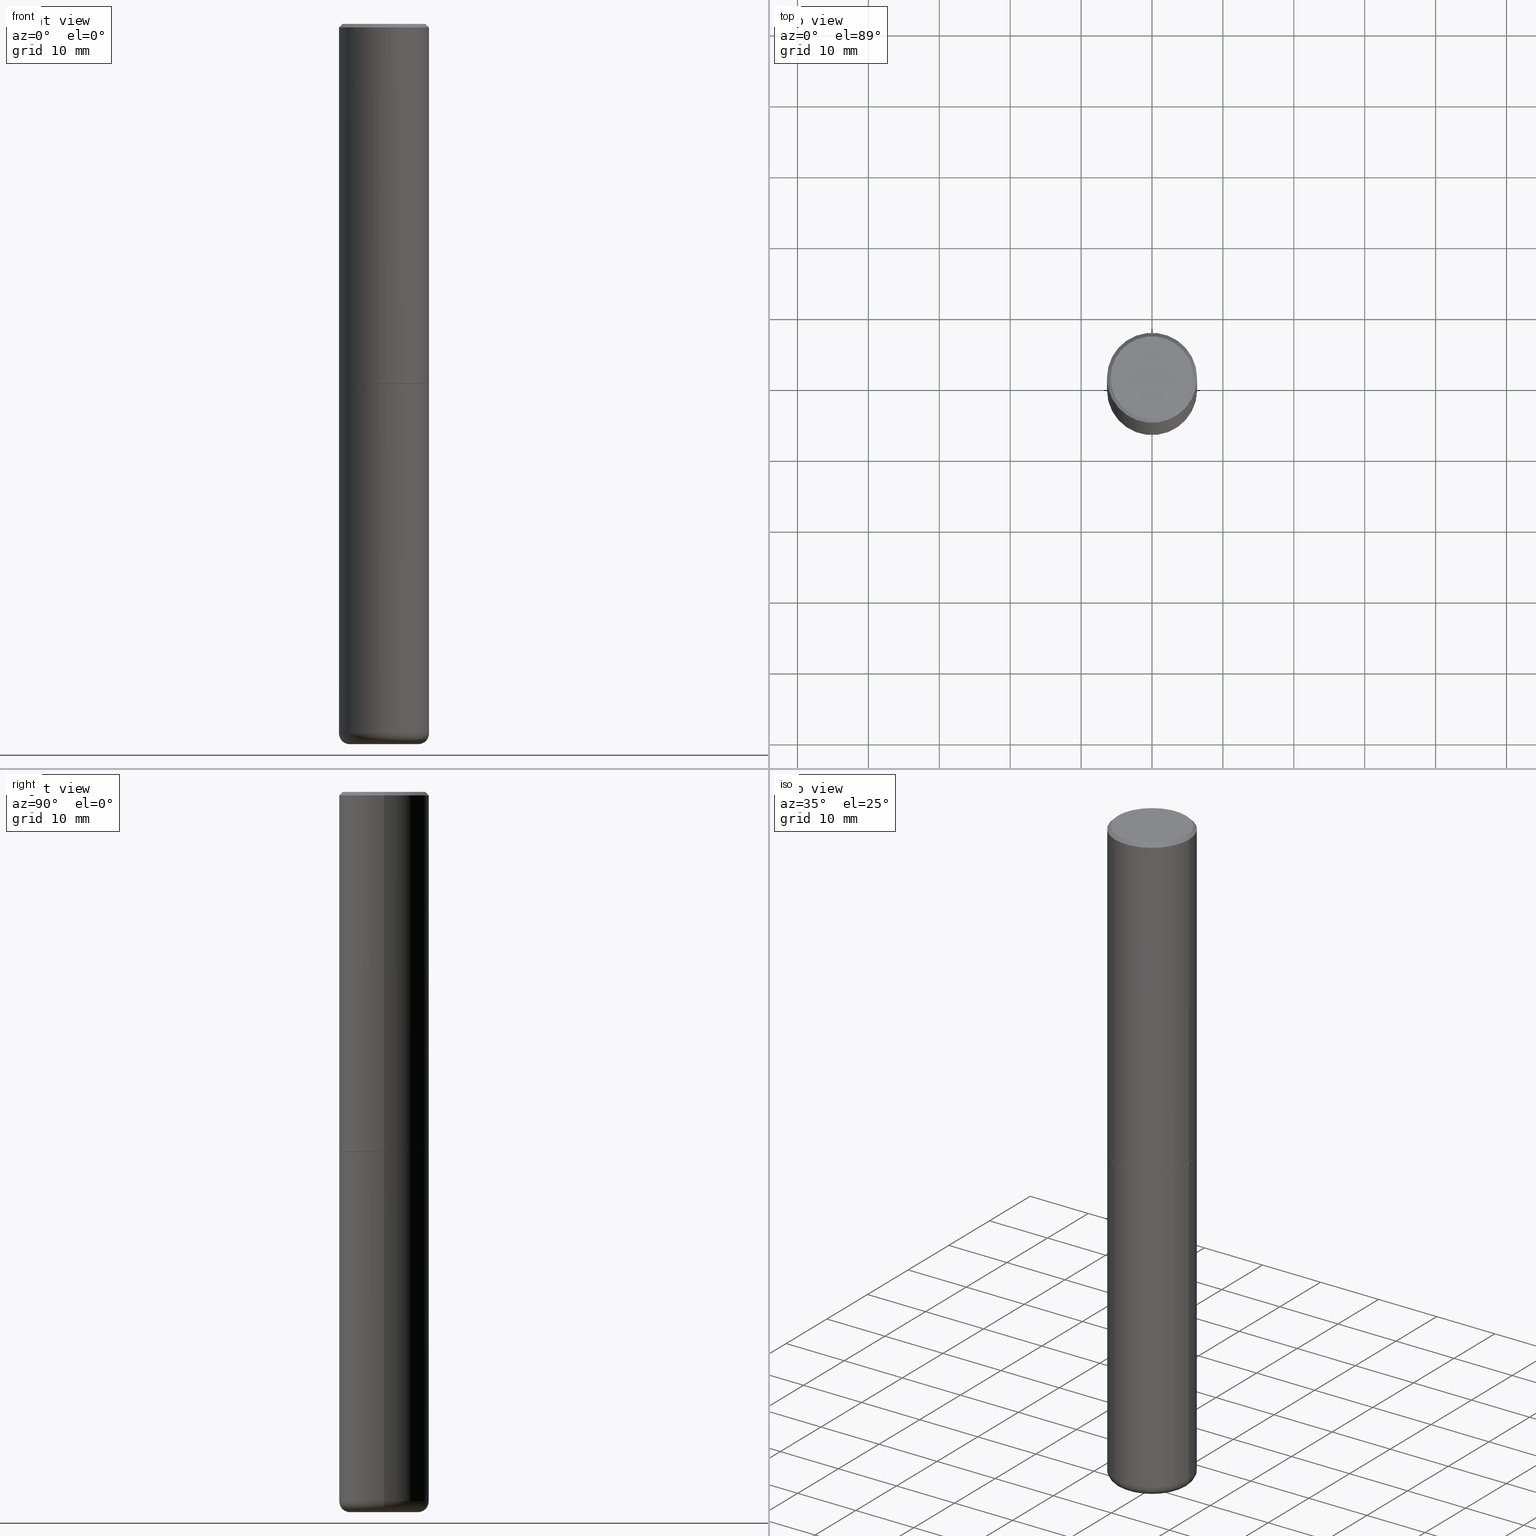
[diagram: canonical four-view strip — front | top / right | iso, engineering-drawing reading convention]
A machine part, canonical four-view strip (front | top / right | iso — engineering-drawing reading convention). The complete STEP part file that produces these views, byte-faithful:
ISO-10303-21;
HEADER;
FILE_DESCRIPTION (( 'STEP AP203' ),
    '1' );
FILE_NAME ('35619.STEP',
    '2022-11-02T20:28:57',
    ( '' ),
    ( '' ),
    'SwSTEP 2.0',
    'SolidWorks 2022',
    '' );
FILE_SCHEMA (( 'CONFIG_CONTROL_DESIGN' ));
ENDSEC;

DATA;
#1 = AXIS2_PLACEMENT_3D ( 'NONE', #47, #161, #270 ) ;
#2 = CARTESIAN_POINT ( 'NONE',  ( 0.1894764078700981458, -1.526582787219033166E-14, -4.000000000000000000 ) ) ;
#3 = EDGE_CURVE ( 'NONE', #419, #341, #153, .T. ) ;
#4 = PERSON_AND_ORGANIZATION_ROLE ( 'creator' ) ;
#5 = DIRECTION ( 'NONE',  ( -1.000000000000000000, 6.982962677686267499E-15, 0.000000000000000000 ) ) ;
#6 = DIRECTION ( 'NONE',  ( 1.000000000000000000, -6.982962677686267499E-15, 0.000000000000000000 ) ) ;
#7 = CARTESIAN_POINT ( 'NONE',  ( -0.2500000000000000000, 1.776356839400250465E-15, -1.229733772563726445E-29 ) ) ;
#8 = AXIS2_PLACEMENT_3D ( 'NONE', #186, #295, #13 ) ;
#9 = VECTOR ( 'NONE', #146, 39.37007874015748854 ) ;
#10 = CARTESIAN_POINT ( 'NONE',  ( -0.1628114078700981238, -1.282820689626927800E-14, -3.999767298070359356 ) ) ;
#11 = DIRECTION ( 'NONE',  ( -2.445468806185136597E-29, 3.491481338843145583E-15, 1.000000000000000000 ) ) ;
#12 = ORIENTED_EDGE ( 'NONE', *, *, #354, .F. ) ;
#13 = DIRECTION ( 'NONE',  ( -1.000000000000000000, 6.982962677686265922E-15, -4.876176775795935793E-29 ) ) ;
#14 = CARTESIAN_POINT ( 'NONE',  ( 0.1628114078700981238, -1.508208021863490291E-14, -3.999767298070359356 ) ) ;
#15 = PRODUCT ( '35619', '35619', '', ( #336 ) ) ;
#16 = CARTESIAN_POINT ( 'NONE',  ( 9.781306159430471629E-29, -1.396511288092772933E-14, -3.999767298070359356 ) ) ;
#17 = AXIS2_PLACEMENT_3D ( 'NONE', #335, #379, #5 ) ;
#18 = VERTEX_POINT ( 'NONE', #68 ) ;
#19 = DIRECTION ( 'NONE',  ( -2.445468806185136877E-29, 3.491481338843145188E-15, 1.000000000000000000 ) ) ;
#20 = DIRECTION ( 'NONE',  ( 1.000000000000000000, -6.982962677686267499E-15, 0.000000000000000000 ) ) ;
#21 = CARTESIAN_POINT ( 'NONE',  ( 4.888492143564087591E-29, -6.979471196347447369E-15, -1.998999999999999888 ) ) ;
#22 = CIRCLE ( 'NONE', #301, 0.05999999999999994227 ) ;
#23 = AXIS2_PLACEMENT_3D ( 'NONE', #211, #376, #196 ) ;
#24 = CC_DESIGN_PERSON_AND_ORGANIZATION_ASSIGNMENT ( #155, #453, ( #473 ) ) ;
#25 = ORIENTED_EDGE ( 'NONE', *, *, #236, .T. ) ;
#26 = APPROVAL ( #256, 'UNSPECIFIED' ) ;
#27 = DIRECTION ( 'NONE',  ( -2.445468806185136597E-29, 3.491481338843145583E-15, 1.000000000000000000 ) ) ;
#28 = COORDINATED_UNIVERSAL_TIME_OFFSET ( 5, 0, .BEHIND. ) ;
#29 = DATE_TIME_ROLE ( 'creation_date' ) ;
#30 = EDGE_LOOP ( 'NONE', ( #215, #443, #134, #410 ) ) ;
#31 = EDGE_CURVE ( 'NONE', #440, #185, #229, .T. ) ;
#32 = CIRCLE ( 'NONE', #56, 0.2299999999999992328 ) ;
#33 = DIRECTION ( 'NONE',  ( 1.000000000000000000, -6.982962677686267499E-15, 0.000000000000000000 ) ) ;
#34 = DIRECTION ( 'NONE',  ( 1.000000000000000000, 0.000000000000000000, 0.000000000000000000 ) ) ;
#35 = ORIENTED_EDGE ( 'NONE', *, *, #411, .T. ) ;
#36 = ORIENTED_EDGE ( 'NONE', *, *, #122, .F. ) ;
#37 = PLANE ( 'NONE',  #8 ) ;
#38 = ORIENTED_EDGE ( 'NONE', *, *, #236, .F. ) ;
#39 = CARTESIAN_POINT ( 'NONE',  ( 4.890937612370273194E-29, -6.982962677686291165E-15, -2.000000000000000000 ) ) ;
#40 = LINE ( 'NONE', #370, #129 ) ;
#41 = VERTEX_POINT ( 'NONE', #374 ) ;
#42 = AXIS2_PLACEMENT_3D ( 'NONE', #394, #11, #466 ) ;
#43 = LOCAL_TIME ( 16, 28, 57.00000000000000000, #416 ) ;
#44 = CIRCLE ( 'NONE', #454, 0.2489999999999999714 ) ;
#45 = FACE_OUTER_BOUND ( 'NONE', #346, .T. ) ;
#46 = DIMENSIONAL_EXPONENTS ( 1.000000000000000000, 0.000000000000000000, 0.000000000000000000, 0.000000000000000000, 0.000000000000000000, 0.000000000000000000, 0.000000000000000000 ) ;
#47 = CARTESIAN_POINT ( 'NONE',  ( 9.781306159430471629E-29, -1.396511288092772933E-14, -3.999767298070359356 ) ) ;
#48 = LINE ( 'NONE', #271, #477 ) ;
#49 = AXIS2_PLACEMENT_3D ( 'NONE', #100, #237, #96 ) ;
#50 = SECURITY_CLASSIFICATION_LEVEL ( 'unclassified' ) ;
#51 = DIRECTION ( 'NONE',  ( 1.000000000000000000, -6.982962677686265922E-15, 4.876176775795935793E-29 ) ) ;
#52 = CARTESIAN_POINT ( 'NONE',  ( 4.890937612370299433E-31, -6.982962677686328587E-17, -0.02000000000000010797 ) ) ;
#53 = DIRECTION ( 'NONE',  ( 1.000000000000000000, -6.982962677686266711E-15, 4.875813741439116029E-29 ) ) ;
#54 = FACE_OUTER_BOUND ( 'NONE', #366, .T. ) ;
#55 = LINE ( 'NONE', #426, #91 ) ;
#56 = AXIS2_PLACEMENT_3D ( 'NONE', #361, #403, #409 ) ;
#57 = DIRECTION ( 'NONE',  ( 2.445468806185136597E-29, -3.491481338843145583E-15, -1.000000000000000000 ) ) ;
#58 = EDGE_CURVE ( 'NONE', #18, #298, #40, .T. ) ;
#59 = ORIENTED_EDGE ( 'NONE', *, *, #150, .T. ) ;
#60 = APPROVAL ( #455, 'UNSPECIFIED' ) ;
#61 = ORIENTED_EDGE ( 'NONE', *, *, #417, .T. ) ;
#62 = CC_DESIGN_PERSON_AND_ORGANIZATION_ASSIGNMENT ( #109, #4, ( #81 ) ) ;
#63 = CONICAL_SURFACE ( 'NONE', #437, 0.1894764078700981458, 1.562069680534929894 ) ;
#64 = CC_DESIGN_APPROVAL ( #452, ( #433 ) ) ;
#65 = DIRECTION ( 'NONE',  ( -2.445468806185136597E-29, 3.491481338843145583E-15, 1.000000000000000000 ) ) ;
#66 = FACE_OUTER_BOUND ( 'NONE', #322, .T. ) ;
#67 = CALENDAR_DATE ( 2022, 2, 11 ) ;
#68 = CARTESIAN_POINT ( 'NONE',  ( 9.766977940771288502E-29, -1.394586998267143363E-14, -3.994081798425500818 ) ) ;
#69 = DIRECTION ( 'NONE',  ( -2.445468806185136877E-29, 3.491481338843145188E-15, 1.000000000000000000 ) ) ;
#70 = CALENDAR_DATE ( 2022, 2, 11 ) ;
#71 = VERTEX_POINT ( 'NONE', #490 ) ;
#72 = AXIS2_PLACEMENT_3D ( 'NONE', #365, #27, #288 ) ;
#73 = UNCERTAINTY_MEASURE_WITH_UNIT (LENGTH_MEASURE( 1.000000000000000082E-05 ), #187, 'distance_accuracy_value', 'NONE');
#74 = VERTEX_POINT ( 'NONE', #291 ) ;
#75 = ORIENTED_EDGE ( 'NONE', *, *, #330, .F. ) ;
#76 = ADVANCED_FACE ( 'NONE', ( #415 ), #167, .F. ) ;
#77 = ADVANCED_FACE ( 'NONE', ( #214 ), #223, .T. ) ;
#78 = ORIENTED_EDGE ( 'NONE', *, *, #364, .F. ) ;
#79 = DIRECTION ( 'NONE',  ( -2.445468806185136597E-29, 3.491481338843145583E-15, 1.000000000000000000 ) ) ;
#80 = AXIS2_PLACEMENT_3D ( 'NONE', #308, #303, #53 ) ;
#81 = PRODUCT_DEFINITION_FORMATION_WITH_SPECIFIED_SOURCE ( 'ANY', '', #15, .NOT_KNOWN. ) ;
#82 = DIRECTION ( 'NONE',  ( -1.000000000000000000, 6.982962677686261189E-15, 0.000000000000000000 ) ) ;
#83 = ADVANCED_FACE ( 'NONE', ( #488 ), #37, .F. ) ;
#84 = ORIENTED_EDGE ( 'NONE', *, *, #164, .F. ) ;
#85 = DIRECTION ( 'NONE',  ( -2.445468806185136597E-29, 3.491481338843145583E-15, 1.000000000000000000 ) ) ;
#86 = MANIFOLD_SOLID_BREP ( 'Body-Move/Copy2[1]', #99 ) ;
#87 = DIRECTION ( 'NONE',  ( -2.445468806185136597E-29, 3.491481338843145583E-15, 1.000000000000000000 ) ) ;
#88 = DIRECTION ( 'NONE',  ( -1.000000000000000000, 6.982962677686266711E-15, 0.000000000000000000 ) ) ;
#89 = DIRECTION ( 'NONE',  ( -2.445468806185136597E-29, 3.491481338843145583E-15, 1.000000000000000000 ) ) ;
#90 = CONICAL_SURFACE ( 'NONE', #115, 0.1628114078700981238, 1.535889741755009918 ) ;
#91 = VECTOR ( 'NONE', #353, 39.37007874015748854 ) ;
#92 = CARTESIAN_POINT ( 'NONE',  ( 0.2500000000000000555, -1.550218512115821313E-14, -3.940002284616149542 ) ) ;
#93 = DIRECTION ( 'NONE',  ( -2.445468806185136597E-29, 3.491481338843145583E-15, 1.000000000000000000 ) ) ;
#94 = ORIENTED_EDGE ( 'NONE', *, *, #58, .T. ) ;
#95 = CYLINDRICAL_SURFACE ( 'NONE', #296, 0.2499999999999996669 ) ;
#96 = DIRECTION ( 'NONE',  ( 1.000000000000000000, -6.982962677686265133E-15, 4.883557194083111780E-29 ) ) ;
#97 = DIRECTION ( 'NONE',  ( -1.000000000000000000, 6.982962677686267499E-15, 0.000000000000000000 ) ) ;
#98 = DIRECTION ( 'NONE',  ( -0.7071067811865232589, 7.493145998870265808E-15, 0.7071067811865715536 ) ) ;
#99 = CLOSED_SHELL ( 'NONE', ( #241, #275, #377, #309, #220, #83, #347, #316, #76 ) ) ;
#100 = CARTESIAN_POINT ( 'NONE',  ( 9.635152683326965477E-29, -1.375644445173664645E-14, -3.940002284616149542 ) ) ;
#101 = CIRCLE ( 'NONE', #162, 0.2500000000000000555 ) ;
#102 = ORIENTED_EDGE ( 'NONE', *, *, #411, .F. ) ;
#103 = DIRECTION ( 'NONE',  ( -2.445468806185136597E-29, 3.491481338843145583E-15, 1.000000000000000000 ) ) ;
#104 = ORIENTED_EDGE ( 'NONE', *, *, #357, .T. ) ;
#105 = AXIS2_PLACEMENT_3D ( 'NONE', #125, #87, #471 ) ;
#106 = EDGE_CURVE ( 'NONE', #242, #127, #22, .T. ) ;
#107 = PERSON_AND_ORGANIZATION ( #148, #302 ) ;
#108 = CARTESIAN_POINT ( 'NONE',  ( 0.2489999999999999714, -8.721720384430171040E-15, -2.000000000000000000 ) ) ;
#109 = PERSON_AND_ORGANIZATION ( #148, #302 ) ;
#110 = ORIENTED_EDGE ( 'NONE', *, *, #395, .F. ) ;
#111 = ORIENTED_EDGE ( 'NONE', *, *, #58, .F. ) ;
#112 = CARTESIAN_POINT ( 'NONE',  ( -0.2499999999999996669, 1.776356839400248098E-15, -1.229733772563724764E-29 ) ) ;
#113 = APPLICATION_PROTOCOL_DEFINITION ( 'international standard', 'config_control_design', 1994, #314 ) ;
#114 = DIRECTION ( 'NONE',  ( 2.445468806185136597E-29, -3.491481338843145583E-15, -1.000000000000000000 ) ) ;
#115 = AXIS2_PLACEMENT_3D ( 'NONE', #225, #427, #88 ) ;
#116 = AXIS2_PLACEMENT_3D ( 'NONE', #386, #449, #34 ) ;
#117 = ORIENTED_EDGE ( 'NONE', *, *, #392, .T. ) ;
#118 = APPROVAL_DATE_TIME ( #381, #26 ) ;
#119 = ORIENTED_EDGE ( 'NONE', *, *, #106, .F. ) ;
#120 = CARTESIAN_POINT ( 'NONE',  ( -0.2489999999999999714, -5.213711265643641709E-15, -2.000000000000000000 ) ) ;
#121 = CARTESIAN_POINT ( 'NONE',  ( 9.781875224740546387E-29, -1.396592535537258233E-14, -4.000000000000000000 ) ) ;
#122 = EDGE_CURVE ( 'NONE', #74, #138, #48, .T. ) ;
#123 = VECTOR ( 'NONE', #98, 39.37007874015748854 ) ;
#124 = DIRECTION ( 'NONE',  ( 1.000000000000000000, -6.982962677686274599E-15, 0.000000000000000000 ) ) ;
#125 = CARTESIAN_POINT ( 'NONE',  ( 4.890937612370273194E-29, -6.982962677686291165E-15, -2.000000000000000000 ) ) ;
#126 = EDGE_CURVE ( 'NONE', #185, #71, #269, .T. ) ;
#127 = VERTEX_POINT ( 'NONE', #92 ) ;
#128 = CARTESIAN_POINT ( 'NONE',  ( 0.2499999999999996669, -1.745740669421564311E-15, 1.219044193948982267E-29 ) ) ;
#129 = VECTOR ( 'NONE', #181, 39.37007874015748143 ) ;
#130 = APPROVAL_PERSON_ORGANIZATION ( #483, #60, #143 ) ;
#131 = DIRECTION ( 'NONE',  ( 1.000000000000000000, -6.982962677686269077E-15, 0.000000000000000000 ) ) ;
#132 = ORIENTED_EDGE ( 'NONE', *, *, #423, .T. ) ;
#133 = DIRECTION ( 'NONE',  ( -1.000000000000000000, 6.982962677686266711E-15, 0.000000000000000000 ) ) ;
#134 = ORIENTED_EDGE ( 'NONE', *, *, #395, .T. ) ;
#135 = LINE ( 'NONE', #112, #412 ) ;
#136 = AXIS2_PLACEMENT_3D ( 'NONE', #16, #434, #359 ) ;
#137 = CIRCLE ( 'NONE', #23, 0.1894764078700981458 ) ;
#138 = VERTEX_POINT ( 'NONE', #352 ) ;
#139 = FACE_OUTER_BOUND ( 'NONE', #176, .T. ) ;
#140 = CARTESIAN_POINT ( 'NONE',  ( 0.1894764078700981458, -1.528903203983153826E-14, -4.000000000000000000 ) ) ;
#141 = FACE_OUTER_BOUND ( 'NONE', #286, .T. ) ;
#142 = ORIENTED_EDGE ( 'NONE', *, *, #280, .F. ) ;
#143 = APPROVAL_ROLE ( '' ) ;
#144 = ORIENTED_EDGE ( 'NONE', *, *, #31, .T. ) ;
#145 = CALENDAR_DATE ( 2022, 2, 11 ) ;
#146 = DIRECTION ( 'NONE',  ( 0.9999619230641714207, -6.890705306874825328E-15, -0.008726535498369011531 ) ) ;
#147 = ORIENTED_EDGE ( 'NONE', *, *, #122, .T. ) ;
#148 = PERSON ( 'UNSPECIFIED', 'UNSPECIFIED', 'UNSPECIFIED', ('UNSPECIFIED'), ('UNSPECIFIED'), ('UNSPECIFIED') ) ;
#149 = EDGE_CURVE ( 'NONE', #154, #298, #254, .T. ) ;
#150 = EDGE_CURVE ( 'NONE', #185, #127, #277, .T. ) ;
#151 = DIRECTION ( 'NONE',  ( -2.445468806185136597E-29, 3.491481338843145583E-15, 1.000000000000000000 ) ) ;
#152 = COORDINATED_UNIVERSAL_TIME_OFFSET ( 5, 0, .BEHIND. ) ;
#153 = LINE ( 'NONE', #108, #371 ) ;
#154 = VERTEX_POINT ( 'NONE', #10 ) ;
#155 = PERSON_AND_ORGANIZATION ( #148, #302 ) ;
#156 = AXIS2_PLACEMENT_3D ( 'NONE', #217, #151, #206 ) ;
#157 = APPROVAL_DATE_TIME ( #261, #452 ) ;
#158 = ORIENTED_EDGE ( 'NONE', *, *, #364, .T. ) ;
#159 = DIRECTION ( 'NONE',  ( 1.000000000000000000, -6.982962677686265133E-15, 4.883557194083111780E-29 ) ) ;
#160 = CARTESIAN_POINT ( 'NONE',  ( 4.890937612370299433E-31, -6.982962677686328587E-17, -0.02000000000000010797 ) ) ;
#161 = DIRECTION ( 'NONE',  ( -2.445468806185136597E-29, 3.491481338843145583E-15, 1.000000000000000000 ) ) ;
#162 = AXIS2_PLACEMENT_3D ( 'NONE', #425, #274, #199 ) ;
#163 = EDGE_CURVE ( 'NONE', #127, #185, #101, .T. ) ;
#164 = EDGE_CURVE ( 'NONE', #441, #74, #283, .T. ) ;
#165 = CARTESIAN_POINT ( 'NONE',  ( 9.635152683326965477E-29, -1.375644445173664645E-14, -3.940002284616149542 ) ) ;
#166 = DIRECTION ( 'NONE',  ( 2.445468806185136597E-29, -3.491481338843145583E-15, -1.000000000000000000 ) ) ;
#167 = CONICAL_SURFACE ( 'NONE', #463, 0.1894764078700981458, 1.562069680534929894 ) ;
#168 = DIRECTION ( 'NONE',  ( -2.445468806185136597E-29, 3.491481338843145583E-15, 1.000000000000000000 ) ) ;
#169 = ORIENTED_EDGE ( 'NONE', *, *, #244, .T. ) ;
#170 = FACE_OUTER_BOUND ( 'NONE', #459, .T. ) ;
#171 = ORIENTED_EDGE ( 'NONE', *, *, #235, .F. ) ;
#172 = AXIS2_PLACEMENT_3D ( 'NONE', #251, #456, #207 ) ;
#173 = APPROVAL_PERSON_ORGANIZATION ( #259, #26, #457 ) ;
#174 = CYLINDRICAL_SURFACE ( 'NONE', #201, 0.2500000000000000000 ) ;
#175 = FACE_OUTER_BOUND ( 'NONE', #383, .T. ) ;
#176 = EDGE_LOOP ( 'NONE', ( #193, #327, #489, #75 ) ) ;
#177 = VERTEX_POINT ( 'NONE', #232 ) ;
#178 = ADVANCED_BREP_SHAPE_REPRESENTATION ( '35619', ( #86, #240, #116 ), #231 ) ;
#179 = LINE ( 'NONE', #2, #9 ) ;
#180 = DATE_AND_TIME ( #369, #190 ) ;
#181 = DIRECTION ( 'NONE',  ( 0.9993908270190957621, -6.978169709227541488E-15, -0.03489949670250108021 ) ) ;
#182 = VECTOR ( 'NONE', #373, 39.37007874015748143 ) ;
#183 = CARTESIAN_POINT ( 'NONE',  ( 0.2299999999999992328, -1.681434332853594278E-15, 8.537024980212318048E-18 ) ) ;
#184 =( NAMED_UNIT ( * ) SI_UNIT ( $, .STERADIAN. ) SOLID_ANGLE_UNIT ( ) );
#185 = VERTEX_POINT ( 'NONE', #387 ) ;
#186 = CARTESIAN_POINT ( 'NONE',  ( 1.745740669421615193E-15, 0.2499999999999930056, -2.000000000000000888 ) ) ;
#187 =( CONVERSION_BASED_UNIT ( 'INCH', #222 ) LENGTH_UNIT ( ) NAMED_UNIT ( #46 ) );
#188 = ORIENTED_EDGE ( 'NONE', *, *, #436, .T. ) ;
#189 = CIRCLE ( 'NONE', #42, 0.2489999999999999714 ) ;
#190 = LOCAL_TIME ( 16, 28, 57.00000000000000000, #340 ) ;
#191 = EDGE_CURVE ( 'NONE', #419, #486, #189, .T. ) ;
#192 = DIRECTION ( 'NONE',  ( 1.000000000000000000, -6.982962677686267499E-15, 0.000000000000000000 ) ) ;
#193 = ORIENTED_EDGE ( 'NONE', *, *, #163, .T. ) ;
#194 = PERSON_AND_ORGANIZATION_ROLE ( 'design_supplier' ) ;
#195 = DIRECTION ( 'NONE',  ( -6.982962677686266711E-15, -1.000000000000000000, 3.491481338843145583E-15 ) ) ;
#196 = DIRECTION ( 'NONE',  ( 1.000000000000000000, -6.982962677686261189E-15, 0.000000000000000000 ) ) ;
#197 = CIRCLE ( 'NONE', #156, 0.1894764078700981458 ) ;
#198 = DIRECTION ( 'NONE',  ( -0.9993908270190957621, 6.856857904024556470E-15, -0.03489949670250108021 ) ) ;
#199 = DIRECTION ( 'NONE',  ( 1.000000000000000000, -6.982962677686269077E-15, 0.000000000000000000 ) ) ;
#200 = CARTESIAN_POINT ( 'NONE',  ( 9.635152683326965477E-29, -1.375644445173664645E-14, -3.940002284616149542 ) ) ;
#201 = AXIS2_PLACEMENT_3D ( 'NONE', #326, #323, #243 ) ;
#202 = ADVANCED_FACE ( 'NONE', ( #45 ), #310, .T. ) ;
#203 = AXIS2_PLACEMENT_3D ( 'NONE', #239, #401, #461 ) ;
#204 = AXIS2_PLACEMENT_3D ( 'NONE', #467, #93, #402 ) ;
#205 = ORIENTED_EDGE ( 'NONE', *, *, #436, .F. ) ;
#206 = DIRECTION ( 'NONE',  ( 1.000000000000000000, -6.982962677686261189E-15, 0.000000000000000000 ) ) ;
#207 = DIRECTION ( 'NONE',  ( -1.000000000000000000, 7.105427357600997914E-15, 0.000000000000000000 ) ) ;
#208 = AXIS2_PLACEMENT_3D ( 'NONE', #165, #349, #131 ) ;
#209 = DIRECTION ( 'NONE',  ( 0.7071067811865232589, -2.468850131082003836E-15, 0.7071067811865715536 ) ) ;
#210 = AXIS2_PLACEMENT_3D ( 'NONE', #398, #166, #133 ) ;
#211 = CARTESIAN_POINT ( 'NONE',  ( 9.781875224740546387E-29, -1.396592535537258233E-14, -4.000000000000000000 ) ) ;
#212 = CC_DESIGN_PERSON_AND_ORGANIZATION_ASSIGNMENT ( #307, #194, ( #81 ) ) ;
#213 = DIRECTION ( 'NONE',  ( 2.438088387897960049E-29, -3.491481338843145188E-15, -1.000000000000000000 ) ) ;
#214 = FACE_OUTER_BOUND ( 'NONE', #469, .T. ) ;
#215 = ORIENTED_EDGE ( 'NONE', *, *, #423, .F. ) ;
#216 = DATE_TIME_ROLE ( 'classification_date' ) ;
#217 = CARTESIAN_POINT ( 'NONE',  ( 9.781875224740546387E-29, -1.396592535537258233E-14, -4.000000000000000000 ) ) ;
#218 = ORIENTED_EDGE ( 'NONE', *, *, #106, .T. ) ;
#219 = ORIENTED_EDGE ( 'NONE', *, *, #417, .F. ) ;
#220 = ADVANCED_FACE ( 'NONE', ( #224 ), #90, .F. ) ;
#221 = LINE ( 'NONE', #344, #439 ) ;
#222 = LENGTH_MEASURE_WITH_UNIT ( LENGTH_MEASURE( 0.02539999999999999897 ), #289 );
#223 = CONICAL_SURFACE ( 'NONE', #17, 0.2499999999999993061, 0.7853981633974477239 ) ;
#224 = FACE_OUTER_BOUND ( 'NONE', #238, .T. ) ;
#225 = CARTESIAN_POINT ( 'NONE',  ( 9.781306159430471629E-29, -1.396511288092772933E-14, -3.999767298070359356 ) ) ;
#226 = ADVANCED_FACE ( 'NONE', ( #305 ), #227, .F. ) ;
#227 = PLANE ( 'NONE',  #372 ) ;
#228 = ORIENTED_EDGE ( 'NONE', *, *, #3, .F. ) ;
#229 = CIRCLE ( 'NONE', #172, 0.05999999999999994227 ) ;
#230 = DIRECTION ( 'NONE',  ( 1.000000000000000000, -6.982962677686266711E-15, 4.876176775795935793E-29 ) ) ;
#231 =( GEOMETRIC_REPRESENTATION_CONTEXT ( 3 ) GLOBAL_UNCERTAINTY_ASSIGNED_CONTEXT ( ( #73 ) ) GLOBAL_UNIT_ASSIGNED_CONTEXT ( ( #187, #414, #184 ) ) REPRESENTATION_CONTEXT ( 'NONE', 'WORKASPACE' ) );
#232 = CARTESIAN_POINT ( 'NONE',  ( 0.2499999999999999722, -8.728703347107857054E-15, -2.000000000000000000 ) ) ;
#233 = CARTESIAN_POINT ( 'NONE',  ( 4.890937612370273194E-29, -6.982962677686291165E-15, -2.000000000000000000 ) ) ;
#234 = CARTESIAN_POINT ( 'NONE',  ( 0.000000000000000000, 0.000000000000000000, 0.000000000000000000 ) ) ;
#235 = EDGE_CURVE ( 'NONE', #41, #138, #472, .T. ) ;
#236 = EDGE_CURVE ( 'NONE', #138, #41, #294, .T. ) ;
#237 = DIRECTION ( 'NONE',  ( -2.445468806185136597E-29, 3.491481338843145583E-15, 1.000000000000000000 ) ) ;
#238 = EDGE_LOOP ( 'NONE', ( #111, #104, #142 ) ) ;
#239 = CARTESIAN_POINT ( 'NONE',  ( 4.888492143564087591E-29, -6.979471196347447369E-15, -1.998999999999999888 ) ) ;
#240 = MANIFOLD_SOLID_BREP ( 'Body-Move/Copy2[2]', #300 ) ;
#241 = ADVANCED_FACE ( 'NONE', ( #299 ), #63, .F. ) ;
#242 = VERTEX_POINT ( 'NONE', #140 ) ;
#243 = DIRECTION ( 'NONE',  ( 1.000000000000000000, -6.982962677686266711E-15, 4.876176775795935793E-29 ) ) ;
#244 = EDGE_CURVE ( 'NONE', #341, #252, #424, .T. ) ;
#245 = ORIENTED_EDGE ( 'NONE', *, *, #404, .F. ) ;
#246 = LOCAL_TIME ( 16, 28, 57.00000000000000000, #28 ) ;
#247 = CC_DESIGN_PERSON_AND_ORGANIZATION_ASSIGNMENT ( #447, #421, ( #433 ) ) ;
#248 = VECTOR ( 'NONE', #358, 39.37007874015748143 ) ;
#249 = ORIENTED_EDGE ( 'NONE', *, *, #31, .F. ) ;
#250 = ORIENTED_EDGE ( 'NONE', *, *, #150, .F. ) ;
#251 = CARTESIAN_POINT ( 'NONE',  ( -0.1900000000000002520, -1.240641325379245490E-14, -3.940002284616149542 ) ) ;
#252 = VERTEX_POINT ( 'NONE', #480 ) ;
#253 = CARTESIAN_POINT ( 'NONE',  ( -0.2489999999999999714, -5.208412811295419307E-15, -2.000000000000000000 ) ) ;
#254 = CIRCLE ( 'NONE', #1, 0.1628114078700981238 ) ;
#255 = ORIENTED_EDGE ( 'NONE', *, *, #244, .F. ) ;
#256 = APPROVAL_STATUS ( 'not_yet_approved' ) ;
#257 = LINE ( 'NONE', #368, #182 ) ;
#258 = ORIENTED_EDGE ( 'NONE', *, *, #404, .T. ) ;
#259 = PERSON_AND_ORGANIZATION ( #148, #302 ) ;
#260 = FACE_OUTER_BOUND ( 'NONE', #479, .T. ) ;
#261 = DATE_AND_TIME ( #70, #333 ) ;
#262 = ORIENTED_EDGE ( 'NONE', *, *, #428, .F. ) ;
#263 = ORIENTED_EDGE ( 'NONE', *, *, #287, .F. ) ;
#264 = DIRECTION ( 'NONE',  ( 1.000000000000000000, -6.982962677686266711E-15, 4.876176775795935793E-29 ) ) ;
#265 = DIRECTION ( 'NONE',  ( 2.445468806185136597E-29, -3.491481338843145583E-15, -1.000000000000000000 ) ) ;
#266 = CONICAL_SURFACE ( 'NONE', #332, 0.2499999999999993061, 0.7853981633974477239 ) ;
#267 = CIRCLE ( 'NONE', #72, 0.2499999999999999722 ) ;
#268 = DESIGN_CONTEXT ( 'detailed design', #367, 'design' ) ;
#269 = LINE ( 'NONE', #7, #405 ) ;
#270 = DIRECTION ( 'NONE',  ( 1.000000000000000000, -6.982962677686266711E-15, 0.000000000000000000 ) ) ;
#271 = CARTESIAN_POINT ( 'NONE',  ( -0.2499999999999993061, 1.675911042644698449E-15, -0.02000000000000010797 ) ) ;
#272 = APPROVAL_PERSON_ORGANIZATION ( #107, #452, #407 ) ;
#273 = ORIENTED_EDGE ( 'NONE', *, *, #149, .F. ) ;
#274 = DIRECTION ( 'NONE',  ( -2.445468806185136597E-29, 3.491481338843145583E-15, 1.000000000000000000 ) ) ;
#275 = ADVANCED_FACE ( 'NONE', ( #141 ), #356, .T. ) ;
#276 = CARTESIAN_POINT ( 'NONE',  ( 0.000000000000000000, 0.000000000000000000, 0.000000000000000000 ) ) ;
#277 = CIRCLE ( 'NONE', #208, 0.2500000000000000555 ) ;
#278 = VECTOR ( 'NONE', #19, 39.37007874015748143 ) ;
#279 = ORIENTED_EDGE ( 'NONE', *, *, #191, .T. ) ;
#280 = EDGE_CURVE ( 'NONE', #298, #154, #350, .T. ) ;
#281 = ADVANCED_FACE ( 'NONE', ( #170 ), #484, .T. ) ;
#282 = PRODUCT_DEFINITION_SHAPE ( 'NONE', 'NONE',  #433 ) ;
#283 = CIRCLE ( 'NONE', #80, 0.2299999999999992328 ) ;
#284 = AXIS2_PLACEMENT_3D ( 'NONE', #444, #85, #318 ) ;
#285 = CYLINDRICAL_SURFACE ( 'NONE', #284, 0.2499999999999996669 ) ;
#286 = EDGE_LOOP ( 'NONE', ( #117, #144, #445, #119 ) ) ;
#287 = EDGE_CURVE ( 'NONE', #252, #341, #362, .T. ) ;
#288 = DIRECTION ( 'NONE',  ( 1.000000000000000000, -6.982962677686267499E-15, 0.000000000000000000 ) ) ;
#289 =( LENGTH_UNIT ( ) NAMED_UNIT ( * ) SI_UNIT ( $, .METRE. ) );
#290 = EDGE_LOOP ( 'NONE', ( #481, #188 ) ) ;
#291 = CARTESIAN_POINT ( 'NONE',  ( -0.2299999999999992328, 1.640996229256267392E-15, 8.537024980189468815E-18 ) ) ;
#292 = ADVANCED_FACE ( 'NONE', ( #54 ), #266, .T. ) ;
#293 = DATE_AND_TIME ( #67, #342 ) ;
#294 = CIRCLE ( 'NONE', #390, 0.2499999999999993061 ) ;
#295 = DIRECTION ( 'NONE',  ( 2.438088387897960049E-29, -3.491481338843145188E-15, -1.000000000000000000 ) ) ;
#296 = AXIS2_PLACEMENT_3D ( 'NONE', #234, #168, #230 ) ;
#297 = CALENDAR_DATE ( 2022, 2, 11 ) ;
#298 = VERTEX_POINT ( 'NONE', #14 ) ;
#299 = FACE_OUTER_BOUND ( 'NONE', #324, .T. ) ;
#300 = CLOSED_SHELL ( 'NONE', ( #202, #320, #292, #77, #446, #281, #226, #408 ) ) ;
#301 = AXIS2_PLACEMENT_3D ( 'NONE', #465, #195, #124 ) ;
#302 = ORGANIZATION ( 'UNSPECIFIED', 'UNSPECIFIED', '' ) ;
#303 = DIRECTION ( 'NONE',  ( -2.445468806185136597E-29, 3.491481338843145583E-15, 1.000000000000000000 ) ) ;
#304 = CC_DESIGN_DATE_AND_TIME_ASSIGNMENT ( #485, #216, ( #473 ) ) ;
#305 = FACE_OUTER_BOUND ( 'NONE', #325, .T. ) ;
#306 = CARTESIAN_POINT ( 'NONE',  ( 0.2500000000000000000, -1.745740669421566678E-15, 1.219044193948983948E-29 ) ) ;
#307 = PERSON_AND_ORGANIZATION ( #148, #302 ) ;
#308 = CARTESIAN_POINT ( 'NONE',  ( -2.087702828670439639E-46, 2.980686340760894400E-32, 8.537024980200822558E-18 ) ) ;
#309 = ADVANCED_FACE ( 'NONE', ( #432 ), #478, .F. ) ;
#310 = CONICAL_SURFACE ( 'NONE', #105, 0.2489999999999999714, 0.7853981633974141952 ) ;
#311 = CC_DESIGN_APPROVAL ( #26, ( #473 ) ) ;
#312 = EDGE_LOOP ( 'NONE', ( #169, #258, #171, #78 ) ) ;
#313 = EDGE_LOOP ( 'NONE', ( #420, #59, #476, #205 ) ) ;
#314 = APPLICATION_CONTEXT ( 'configuration controlled 3d designs of mechanical parts and assemblies' ) ;
#315 = FACE_OUTER_BOUND ( 'NONE', #313, .T. ) ;
#316 = ADVANCED_FACE ( 'NONE', ( #260 ), #363, .T. ) ;
#317 = DIRECTION ( 'NONE',  ( 1.000000000000000000, -6.982962677686267499E-15, 0.000000000000000000 ) ) ;
#318 = DIRECTION ( 'NONE',  ( 1.000000000000000000, -6.982962677686266711E-15, 4.876176775795935793E-29 ) ) ;
#319 = ORIENTED_EDGE ( 'NONE', *, *, #287, .T. ) ;
#320 = ADVANCED_FACE ( 'NONE', ( #384 ), #95, .T. ) ;
#321 = CC_DESIGN_APPROVAL ( #60, ( #81 ) ) ;
#322 = EDGE_LOOP ( 'NONE', ( #351, #375 ) ) ;
#323 = DIRECTION ( 'NONE',  ( -2.445468806185136597E-29, 3.491481338843145583E-15, 1.000000000000000000 ) ) ;
#324 = EDGE_LOOP ( 'NONE', ( #355, #132, #102, #110 ) ) ;
#325 = EDGE_LOOP ( 'NONE', ( #380, #262 ) ) ;
#326 = CARTESIAN_POINT ( 'NONE',  ( 0.000000000000000000, 0.000000000000000000, 0.000000000000000000 ) ) ;
#327 = ORIENTED_EDGE ( 'NONE', *, *, #126, .T. ) ;
#328 = CARTESIAN_POINT ( 'NONE',  ( -0.1894764078700981458, -1.229985105780440632E-14, -4.000000000000000000 ) ) ;
#329 = ORIENTED_EDGE ( 'NONE', *, *, #3, .T. ) ;
#330 = EDGE_CURVE ( 'NONE', #127, #177, #396, .T. ) ;
#331 = SHAPE_DEFINITION_REPRESENTATION ( #282, #178 ) ;
#332 = AXIS2_PLACEMENT_3D ( 'NONE', #52, #57, #97 ) ;
#333 = LOCAL_TIME ( 16, 28, 57.00000000000000000, #487 ) ;
#334 = APPROVAL_DATE_TIME ( #180, #60 ) ;
#335 = CARTESIAN_POINT ( 'NONE',  ( 4.890937612370299433E-31, -6.982962677686328587E-17, -0.02000000000000010797 ) ) ;
#336 = MECHANICAL_CONTEXT ( 'NONE', #314, 'mechanical' ) ;
#337 = DIRECTION ( 'NONE',  ( -1.000000000000000000, 6.982962677686265922E-15, -4.876176775795935793E-29 ) ) ;
#338 = PERSON_AND_ORGANIZATION ( #148, #302 ) ;
#339 = DIRECTION ( 'NONE',  ( -1.000000000000000000, 6.982962677686261189E-15, 0.000000000000000000 ) ) ;
#340 = COORDINATED_UNIVERSAL_TIME_OFFSET ( 5, 0, .BEHIND. ) ;
#341 = VERTEX_POINT ( 'NONE', #393 ) ;
#342 = LOCAL_TIME ( 16, 28, 57.00000000000000000, #152 ) ;
#343 = CC_DESIGN_DATE_AND_TIME_ASSIGNMENT ( #293, #29, ( #433 ) ) ;
#344 = CARTESIAN_POINT ( 'NONE',  ( -0.1628114078700981238, -1.282820689626927800E-14, -3.999767298070359356 ) ) ;
#345 = CARTESIAN_POINT ( 'NONE',  ( 4.890937612370299433E-31, -6.982962677686328587E-17, -0.02000000000000010797 ) ) ;
#346 = EDGE_LOOP ( 'NONE', ( #279, #482, #255, #228 ) ) ;
#347 = ADVANCED_FACE ( 'NONE', ( #315 ), #474, .T. ) ;
#348 = DIRECTION ( 'NONE',  ( -0.7071067811865471286, 2.468850131082252722E-15, -0.7071067811865479058 ) ) ;
#349 = DIRECTION ( 'NONE',  ( -2.445468806185136597E-29, 3.491481338843145583E-15, 1.000000000000000000 ) ) ;
#350 = CIRCLE ( 'NONE', #136, 0.1628114078700981238 ) ;
#351 = ORIENTED_EDGE ( 'NONE', *, *, #460, .T. ) ;
#352 = CARTESIAN_POINT ( 'NONE',  ( -0.2499999999999993061, 1.675911042644698449E-15, -0.02000000000000010797 ) ) ;
#353 = DIRECTION ( 'NONE',  ( -0.9999619230641714207, 6.952228252019186602E-15, -0.008726535498369011531 ) ) ;
#354 = EDGE_CURVE ( 'NONE', #486, #252, #435, .T. ) ;
#355 = ORIENTED_EDGE ( 'NONE', *, *, #149, .T. ) ;
#356 = TOROIDAL_SURFACE ( 'NONE', #49, 0.1900000000000002520, 0.05999999999999995615 ) ;
#357 = EDGE_CURVE ( 'NONE', #18, #154, #221, .T. ) ;
#358 = DIRECTION ( 'NONE',  ( -2.445468806185136877E-29, 3.491481338843145188E-15, 1.000000000000000000 ) ) ;
#359 = DIRECTION ( 'NONE',  ( 1.000000000000000000, -6.982962677686266711E-15, 0.000000000000000000 ) ) ;
#360 = PRODUCT_RELATED_PRODUCT_CATEGORY ( 'detail', '', ( #15 ) ) ;
#361 = CARTESIAN_POINT ( 'NONE',  ( -2.087702828670439639E-46, 2.980686340760894400E-32, 8.537024980200822558E-18 ) ) ;
#362 = CIRCLE ( 'NONE', #203, 0.2499999999999999722 ) ;
#363 = TOROIDAL_SURFACE ( 'NONE', #406, 0.1900000000000002520, 0.05999999999999995615 ) ;
#364 = EDGE_CURVE ( 'NONE', #341, #41, #470, .T. ) ;
#365 = CARTESIAN_POINT ( 'NONE',  ( 4.890937612370273194E-29, -6.982962677686291165E-15, -2.000000000000000000 ) ) ;
#366 = EDGE_LOOP ( 'NONE', ( #84, #61, #492, #36 ) ) ;
#367 = APPLICATION_CONTEXT ( 'configuration controlled 3d designs of mechanical parts and assemblies' ) ;
#368 = CARTESIAN_POINT ( 'NONE',  ( 0.2499999999999993061, -1.784954126219741456E-15, -0.02000000000000010797 ) ) ;
#369 = CALENDAR_DATE ( 2022, 2, 11 ) ;
#370 = CARTESIAN_POINT ( 'NONE',  ( 0.1628114078700981238, -1.508208021863490291E-14, -3.999767298070359356 ) ) ;
#371 = VECTOR ( 'NONE', #209, 39.37007874015748854 ) ;
#372 = AXIS2_PLACEMENT_3D ( 'NONE', #389, #388, #51 ) ;
#373 = DIRECTION ( 'NONE',  ( 0.7071067811865471286, -7.319954787623254468E-15, -0.7071067811865479058 ) ) ;
#374 = CARTESIAN_POINT ( 'NONE',  ( 0.2499999999999993061, -1.784954126219741456E-15, -0.02000000000000010797 ) ) ;
#375 = ORIENTED_EDGE ( 'NONE', *, *, #164, .T. ) ;
#376 = DIRECTION ( 'NONE',  ( -2.445468806185136597E-29, 3.491481338843145583E-15, 1.000000000000000000 ) ) ;
#377 = ADVANCED_FACE ( 'NONE', ( #139 ), #174, .T. ) ;
#378 = CARTESIAN_POINT ( 'NONE',  ( 1.606081415867835743E-15, 0.2299999999999992328, -7.987721954438203042E-16 ) ) ;
#379 = DIRECTION ( 'NONE',  ( 2.445468806185136597E-29, -3.491481338843145583E-15, -1.000000000000000000 ) ) ;
#380 = ORIENTED_EDGE ( 'NONE', *, *, #191, .F. ) ;
#381 = DATE_AND_TIME ( #145, #43 ) ;
#382 = CARTESIAN_POINT ( 'NONE',  ( 0.2489999999999999714, -8.721720384430171040E-15, -2.000000000000000000 ) ) ;
#383 = EDGE_LOOP ( 'NONE', ( #245, #319, #158, #38 ) ) ;
#384 = FACE_OUTER_BOUND ( 'NONE', #312, .T. ) ;
#385 = AXIS2_PLACEMENT_3D ( 'NONE', #21, #103, #20 ) ;
#386 = CARTESIAN_POINT ( 'NONE',  ( 0.000000000000000000, 0.000000000000000000, 0.000000000000000000 ) ) ;
#387 = CARTESIAN_POINT ( 'NONE',  ( -0.2500000000000000555, -8.593346725311217160E-15, -3.940002284616149542 ) ) ;
#388 = DIRECTION ( 'NONE',  ( -2.438088387897960049E-29, 3.491481338843145188E-15, 1.000000000000000000 ) ) ;
#389 = CARTESIAN_POINT ( 'NONE',  ( 4.890937612370273194E-29, -6.982962677686291165E-15, -2.000000000000000000 ) ) ;
#390 = AXIS2_PLACEMENT_3D ( 'NONE', #345, #462, #6 ) ;
#391 = AXIS2_PLACEMENT_3D ( 'NONE', #276, #79, #264 ) ;
#392 = EDGE_CURVE ( 'NONE', #242, #440, #137, .T. ) ;
#393 = CARTESIAN_POINT ( 'NONE',  ( 0.2499999999999999722, -8.725211865769014047E-15, -1.998999999999999888 ) ) ;
#394 = CARTESIAN_POINT ( 'NONE',  ( 4.890937612370273194E-29, -6.982962677686291165E-15, -2.000000000000000000 ) ) ;
#395 = EDGE_CURVE ( 'NONE', #154, #440, #55, .T. ) ;
#396 = LINE ( 'NONE', #306, #248 ) ;
#397 = EDGE_CURVE ( 'NONE', #177, #71, #431, .T. ) ;
#398 = CARTESIAN_POINT ( 'NONE',  ( 9.781306159430471629E-29, -1.396511288092772933E-14, -3.999767298070359356 ) ) ;
#399 = ORIENTED_EDGE ( 'NONE', *, *, #428, .T. ) ;
#400 = CC_DESIGN_SECURITY_CLASSIFICATION ( #473, ( #81 ) ) ;
#401 = DIRECTION ( 'NONE',  ( -2.445468806185136597E-29, 3.491481338843145583E-15, 1.000000000000000000 ) ) ;
#402 = DIRECTION ( 'NONE',  ( 1.000000000000000000, -6.982962677686267499E-15, 0.000000000000000000 ) ) ;
#403 = DIRECTION ( 'NONE',  ( -2.445468806185136597E-29, 3.491481338843145583E-15, 1.000000000000000000 ) ) ;
#404 = EDGE_CURVE ( 'NONE', #252, #138, #135, .T. ) ;
#405 = VECTOR ( 'NONE', #429, 39.37007874015748143 ) ;
#406 = AXIS2_PLACEMENT_3D ( 'NONE', #200, #89, #159 ) ;
#407 = APPROVAL_ROLE ( '' ) ;
#408 = ADVANCED_FACE ( 'NONE', ( #66 ), #413, .F. ) ;
#409 = DIRECTION ( 'NONE',  ( 1.000000000000000000, -6.982962677686266711E-15, 4.875813741439116029E-29 ) ) ;
#410 = ORIENTED_EDGE ( 'NONE', *, *, #392, .F. ) ;
#411 = EDGE_CURVE ( 'NONE', #440, #242, #197, .T. ) ;
#412 = VECTOR ( 'NONE', #69, 39.37007874015748143 ) ;
#413 = PLANE ( 'NONE',  #464 ) ;
#414 =( NAMED_UNIT ( * ) PLANE_ANGLE_UNIT ( ) SI_UNIT ( $, .RADIAN. ) );
#415 = FACE_OUTER_BOUND ( 'NONE', #30, .T. ) ;
#416 = COORDINATED_UNIVERSAL_TIME_OFFSET ( 5, 0, .BEHIND. ) ;
#417 = EDGE_CURVE ( 'NONE', #441, #41, #257, .T. ) ;
#418 = APPROVAL_STATUS ( 'not_yet_approved' ) ;
#419 = VERTEX_POINT ( 'NONE', #382 ) ;
#420 = ORIENTED_EDGE ( 'NONE', *, *, #126, .F. ) ;
#421 = PERSON_AND_ORGANIZATION_ROLE ( 'creator' ) ;
#422 = ORIENTED_EDGE ( 'NONE', *, *, #460, .F. ) ;
#423 = EDGE_CURVE ( 'NONE', #298, #242, #179, .T. ) ;
#424 = CIRCLE ( 'NONE', #385, 0.2499999999999999722 ) ;
#425 = CARTESIAN_POINT ( 'NONE',  ( 9.635152683326965477E-29, -1.375644445173664645E-14, -3.940002284616149542 ) ) ;
#426 = CARTESIAN_POINT ( 'NONE',  ( -0.1894764078700981458, -1.264281867091362798E-14, -4.000000000000000000 ) ) ;
#427 = DIRECTION ( 'NONE',  ( 2.445468806185136597E-29, -3.491481338843145583E-15, -1.000000000000000000 ) ) ;
#428 = EDGE_CURVE ( 'NONE', #486, #419, #44, .T. ) ;
#429 = DIRECTION ( 'NONE',  ( -2.445468806185136877E-29, 3.491481338843145188E-15, 1.000000000000000000 ) ) ;
#430 = AXIS2_PLACEMENT_3D ( 'NONE', #233, #475, #317 ) ;
#431 = CIRCLE ( 'NONE', #204, 0.2499999999999999722 ) ;
#432 = FACE_OUTER_BOUND ( 'NONE', #448, .T. ) ;
#433 = PRODUCT_DEFINITION ( 'UNKNOWN', '', #81, #268 ) ;
#434 = DIRECTION ( 'NONE',  ( -2.445468806185136597E-29, 3.491481338843145583E-15, 1.000000000000000000 ) ) ;
#435 = LINE ( 'NONE', #120, #123 ) ;
#436 = EDGE_CURVE ( 'NONE', #71, #177, #267, .T. ) ;
#437 = AXIS2_PLACEMENT_3D ( 'NONE', #121, #265, #82 ) ;
#438 = CC_DESIGN_PERSON_AND_ORGANIZATION_ASSIGNMENT ( #338, #458, ( #15 ) ) ;
#439 = VECTOR ( 'NONE', #198, 39.37007874015748143 ) ;
#440 = VERTEX_POINT ( 'NONE', #328 ) ;
#441 = VERTEX_POINT ( 'NONE', #183 ) ;
#442 = AXIS2_PLACEMENT_3D ( 'NONE', #160, #468, #192 ) ;
#443 = ORIENTED_EDGE ( 'NONE', *, *, #280, .T. ) ;
#444 = CARTESIAN_POINT ( 'NONE',  ( 0.000000000000000000, 0.000000000000000000, 0.000000000000000000 ) ) ;
#445 = ORIENTED_EDGE ( 'NONE', *, *, #163, .F. ) ;
#446 = ADVANCED_FACE ( 'NONE', ( #175 ), #285, .T. ) ;
#447 = PERSON_AND_ORGANIZATION ( #148, #302 ) ;
#448 = EDGE_LOOP ( 'NONE', ( #451, #94, #273 ) ) ;
#449 = DIRECTION ( 'NONE',  ( 0.000000000000000000, 0.000000000000000000, 1.000000000000000000 ) ) ;
#450 = CARTESIAN_POINT ( 'NONE',  ( 9.781875224740546387E-29, -1.396592535537258233E-14, -4.000000000000000000 ) ) ;
#451 = ORIENTED_EDGE ( 'NONE', *, *, #357, .F. ) ;
#452 = APPROVAL ( #418, 'UNSPECIFIED' ) ;
#453 = PERSON_AND_ORGANIZATION_ROLE ( 'classification_officer' ) ;
#454 = AXIS2_PLACEMENT_3D ( 'NONE', #39, #65, #33 ) ;
#455 = APPROVAL_STATUS ( 'not_yet_approved' ) ;
#456 = DIRECTION ( 'NONE',  ( 7.105427357601001859E-15, 1.000000000000000000, -3.491481338843145583E-15 ) ) ;
#457 = APPROVAL_ROLE ( '' ) ;
#458 = PERSON_AND_ORGANIZATION_ROLE ( 'design_owner' ) ;
#459 = EDGE_LOOP ( 'NONE', ( #12, #399, #329, #263 ) ) ;
#460 = EDGE_CURVE ( 'NONE', #74, #441, #32, .T. ) ;
#461 = DIRECTION ( 'NONE',  ( 1.000000000000000000, -6.982962677686267499E-15, 0.000000000000000000 ) ) ;
#462 = DIRECTION ( 'NONE',  ( -2.445468806185136597E-29, 3.491481338843145583E-15, 1.000000000000000000 ) ) ;
#463 = AXIS2_PLACEMENT_3D ( 'NONE', #450, #114, #339 ) ;
#464 = AXIS2_PLACEMENT_3D ( 'NONE', #378, #213, #337 ) ;
#465 = CARTESIAN_POINT ( 'NONE',  ( 0.1900000000000002520, -1.508320736049703965E-14, -3.940002284616149542 ) ) ;
#466 = DIRECTION ( 'NONE',  ( 1.000000000000000000, -6.982962677686267499E-15, 0.000000000000000000 ) ) ;
#467 = CARTESIAN_POINT ( 'NONE',  ( 4.890937612370273194E-29, -6.982962677686291165E-15, -2.000000000000000000 ) ) ;
#468 = DIRECTION ( 'NONE',  ( -2.445468806185136597E-29, 3.491481338843145583E-15, 1.000000000000000000 ) ) ;
#469 = EDGE_LOOP ( 'NONE', ( #219, #422, #147, #25 ) ) ;
#470 = LINE ( 'NONE', #128, #278 ) ;
#471 = DIRECTION ( 'NONE',  ( 1.000000000000000000, -6.982962677686267499E-15, 0.000000000000000000 ) ) ;
#472 = CIRCLE ( 'NONE', #442, 0.2499999999999993061 ) ;
#473 = SECURITY_CLASSIFICATION ( '', '', #50 ) ;
#474 = CYLINDRICAL_SURFACE ( 'NONE', #391, 0.2500000000000000000 ) ;
#475 = DIRECTION ( 'NONE',  ( -2.445468806185136597E-29, 3.491481338843145583E-15, 1.000000000000000000 ) ) ;
#476 = ORIENTED_EDGE ( 'NONE', *, *, #330, .T. ) ;
#477 = VECTOR ( 'NONE', #348, 39.37007874015748143 ) ;
#478 = CONICAL_SURFACE ( 'NONE', #210, 0.1628114078700981238, 1.535889741755009918 ) ;
#479 = EDGE_LOOP ( 'NONE', ( #249, #35, #218, #250 ) ) ;
#480 = CARTESIAN_POINT ( 'NONE',  ( -0.2500000000000000000, -1.748293572161900530E-15, -1.998999999999999888 ) ) ;
#481 = ORIENTED_EDGE ( 'NONE', *, *, #397, .T. ) ;
#482 = ORIENTED_EDGE ( 'NONE', *, *, #354, .T. ) ;
#483 = PERSON_AND_ORGANIZATION ( #148, #302 ) ;
#484 = CONICAL_SURFACE ( 'NONE', #430, 0.2489999999999999714, 0.7853981633974141952 ) ;
#485 = DATE_AND_TIME ( #297, #246 ) ;
#486 = VERTEX_POINT ( 'NONE', #253 ) ;
#487 = COORDINATED_UNIVERSAL_TIME_OFFSET ( 5, 0, .BEHIND. ) ;
#488 = FACE_OUTER_BOUND ( 'NONE', #290, .T. ) ;
#489 = ORIENTED_EDGE ( 'NONE', *, *, #397, .F. ) ;
#490 = CARTESIAN_POINT ( 'NONE',  ( -0.2499999999999999722, -8.593346725311218738E-15, -2.000000000000000000 ) ) ;
#491 = APPLICATION_PROTOCOL_DEFINITION ( 'international standard', 'config_control_design', 1994, #367 ) ;
#492 = ORIENTED_EDGE ( 'NONE', *, *, #235, .T. ) ;
ENDSEC;
END-ISO-10303-21;
